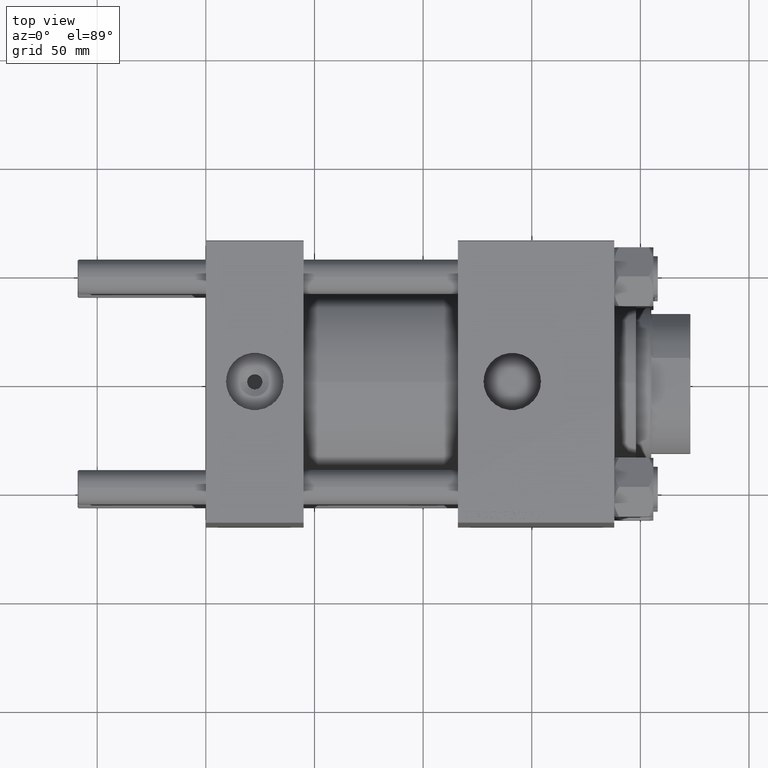
[diagram: clean part render]
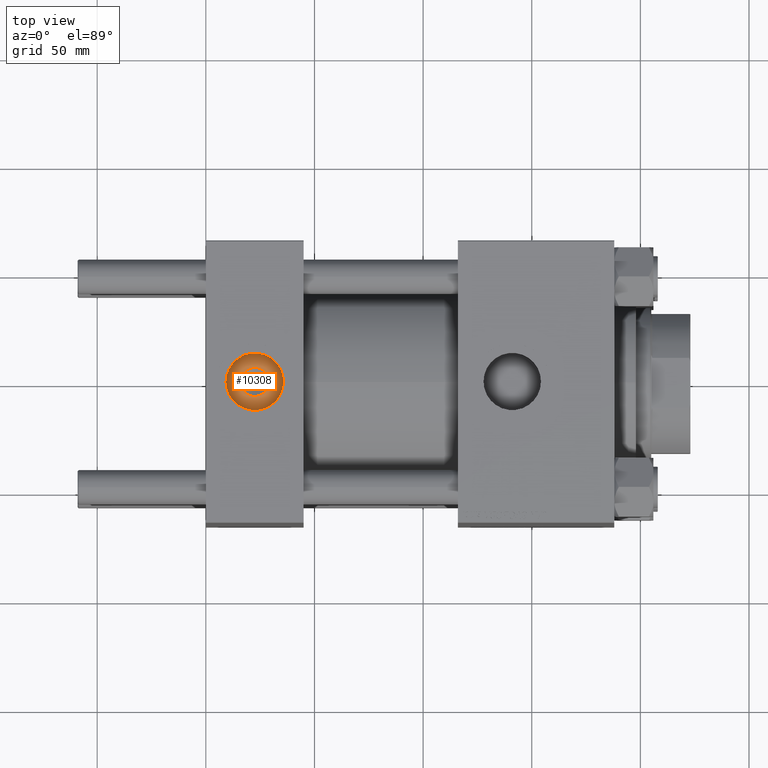
[diagram: same view with one face highlighted and labeled with its STEP entity id]
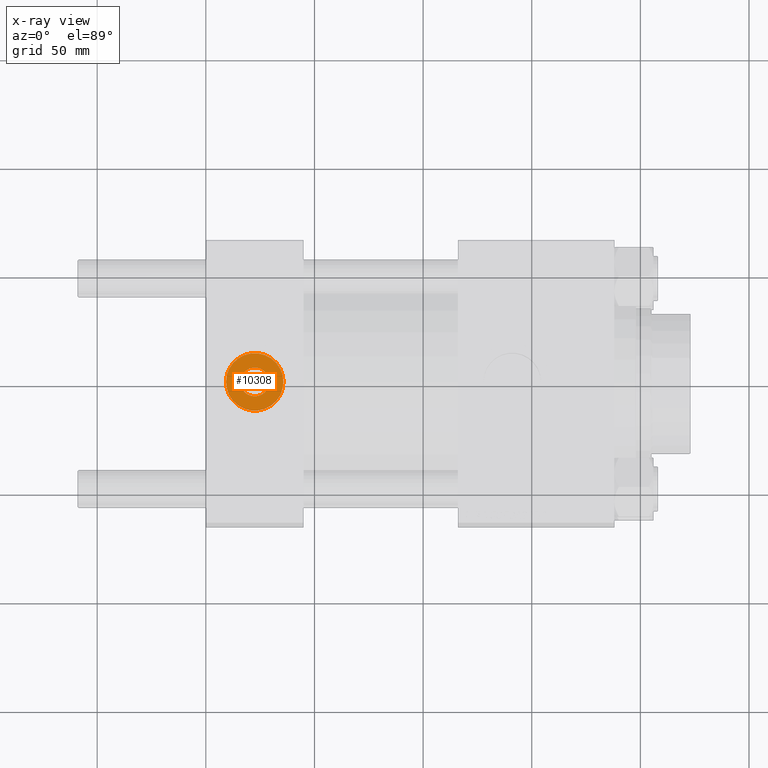
[diagram: x-ray of the same camera — body ghosted, the highlighted face saturated]
A machine part, top view. The second image highlights one B-rep face of the part: STEP entity #10308.
The next image is the same camera in x-ray: the body ghosted, the highlighted face saturated — about 0% of this face is hidden behind the body in this view.
In plain terms, the highlighted planar face has unit normal (0, 0, 1).
Its self-contained STEP definition (entity closure, byte-faithful):
#1315 = DIRECTION ( 'NONE',  ( 0.000000000000000000, 0.000000000000000000, 1.000000000000000000 ) ) ;
#1497 = CARTESIAN_POINT ( 'NONE',  ( 9.279999999999994031, -7.054634311411234321E-15, 54.19999999999999574 ) ) ;
#6038 = FACE_OUTER_BOUND ( 'NONE', #12885, .T. ) ;
#8437 = DIRECTION ( 'NONE',  ( 1.000000000000000000, 0.000000000000000000, 0.000000000000000000 ) ) ;
#9091 = ORIENTED_EDGE ( 'NONE', *, *, #35970, .T. ) ;
#10308 = ADVANCED_FACE ( 'NONE', ( #20537, #6038 ), #47754, .T. ) ;
#11557 = CARTESIAN_POINT ( 'NONE',  ( 29.14000000000003254, -8.673617379884035472E-15, 54.19999999999999574 ) ) ;
#11940 = ORIENTED_EDGE ( 'NONE', *, *, #43008, .T. ) ;
#11952 = DIRECTION ( 'NONE',  ( -0.000000000000000000, -0.000000000000000000, -1.000000000000000000 ) ) ;
#12696 = DIRECTION ( 'NONE',  ( 1.000000000000000000, 0.000000000000000000, 0.000000000000000000 ) ) ;
#12885 = EDGE_LOOP ( 'NONE', ( #21441, #36128 ) ) ;
#13166 = DIRECTION ( 'NONE',  ( 0.000000000000000000, 0.000000000000000000, 1.000000000000000000 ) ) ;
#14294 = CIRCLE ( 'NONE', #34647, 6.640000000000034319 ) ;
#16711 = CARTESIAN_POINT ( 'NONE',  ( 22.50000000000000000, -8.673617379884035472E-15, 54.19999999999999574 ) ) ;
#16993 = AXIS2_PLACEMENT_3D ( 'NONE', #46533, #11952, #12696 ) ;
#17850 = EDGE_CURVE ( 'NONE', #38984, #36856, #46443, .T. ) ;
#20537 = FACE_BOUND ( 'NONE', #48205, .T. ) ;
#21441 = ORIENTED_EDGE ( 'NONE', *, *, #17850, .T. ) ;
#21834 = EDGE_CURVE ( 'NONE', #36856, #38984, #28572, .T. ) ;
#23375 = CARTESIAN_POINT ( 'NONE',  ( 35.71999999999999886, -8.673617379884035472E-15, 54.19999999999999574 ) ) ;
#28572 = CIRCLE ( 'NONE', #47269, 13.22000000000000242 ) ;
#28648 = DIRECTION ( 'NONE',  ( 1.000000000000000000, 0.000000000000000000, -0.000000000000000000 ) ) ;
#29129 = DIRECTION ( 'NONE',  ( 1.000000000000000000, 0.000000000000000000, 0.000000000000000000 ) ) ;
#30423 = VERTEX_POINT ( 'NONE', #44437 ) ;
#32360 = AXIS2_PLACEMENT_3D ( 'NONE', #16711, #13166, #28648 ) ;
#34359 = CARTESIAN_POINT ( 'NONE',  ( 22.50000000000000000, -8.673617379884035472E-15, 54.19999999999999574 ) ) ;
#34647 = AXIS2_PLACEMENT_3D ( 'NONE', #47987, #36779, #29129 ) ;
#35367 = DIRECTION ( 'NONE',  ( 1.000000000000000000, 0.000000000000000000, 0.000000000000000000 ) ) ;
#35970 = EDGE_CURVE ( 'NONE', #30423, #37335, #14294, .T. ) ;
#36128 = ORIENTED_EDGE ( 'NONE', *, *, #21834, .T. ) ;
#36132 = CARTESIAN_POINT ( 'NONE',  ( 22.50000000000000000, -8.673617379884035472E-15, 54.19999999999999574 ) ) ;
#36779 = DIRECTION ( 'NONE',  ( -0.000000000000000000, -0.000000000000000000, -1.000000000000000000 ) ) ;
#36856 = VERTEX_POINT ( 'NONE', #1497 ) ;
#37335 = VERTEX_POINT ( 'NONE', #11557 ) ;
#38951 = CIRCLE ( 'NONE', #16993, 6.640000000000034319 ) ;
#38984 = VERTEX_POINT ( 'NONE', #23375 ) ;
#41566 = AXIS2_PLACEMENT_3D ( 'NONE', #34359, #46803, #35367 ) ;
#43008 = EDGE_CURVE ( 'NONE', #37335, #30423, #38951, .T. ) ;
#44437 = CARTESIAN_POINT ( 'NONE',  ( 15.85999999999996390, -7.860451905250189418E-15, 54.19999999999999574 ) ) ;
#46443 = CIRCLE ( 'NONE', #41566, 13.22000000000000242 ) ;
#46533 = CARTESIAN_POINT ( 'NONE',  ( 22.50000000000000000, -8.673617379884035472E-15, 54.19999999999999574 ) ) ;
#46803 = DIRECTION ( 'NONE',  ( 0.000000000000000000, 0.000000000000000000, 1.000000000000000000 ) ) ;
#47269 = AXIS2_PLACEMENT_3D ( 'NONE', #36132, #1315, #8437 ) ;
#47754 = PLANE ( 'NONE',  #32360 ) ;
#47987 = CARTESIAN_POINT ( 'NONE',  ( 22.50000000000000000, -8.673617379884035472E-15, 54.19999999999999574 ) ) ;
#48205 = EDGE_LOOP ( 'NONE', ( #11940, #9091 ) ) ;